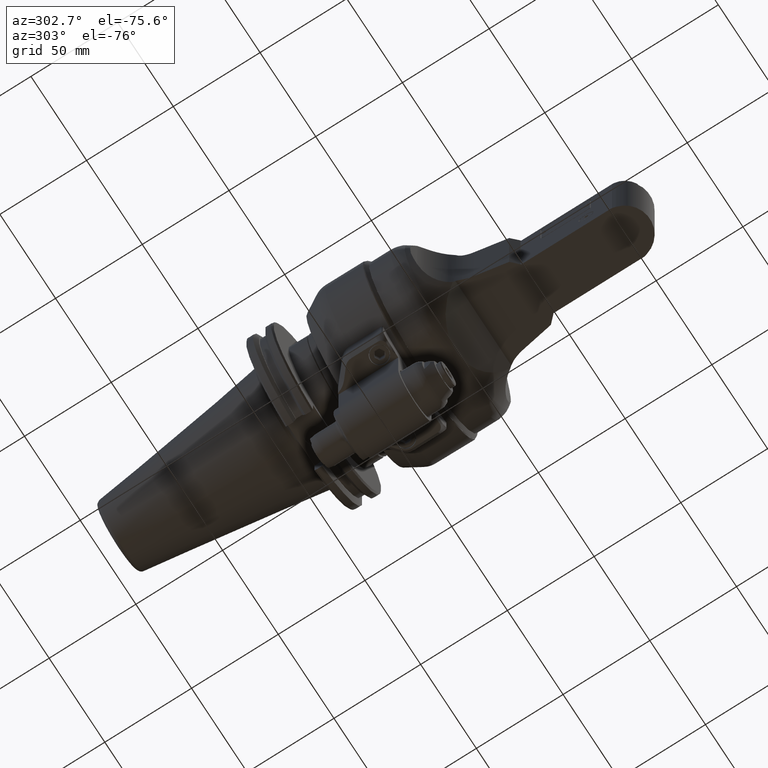
[diagram: clean part render]
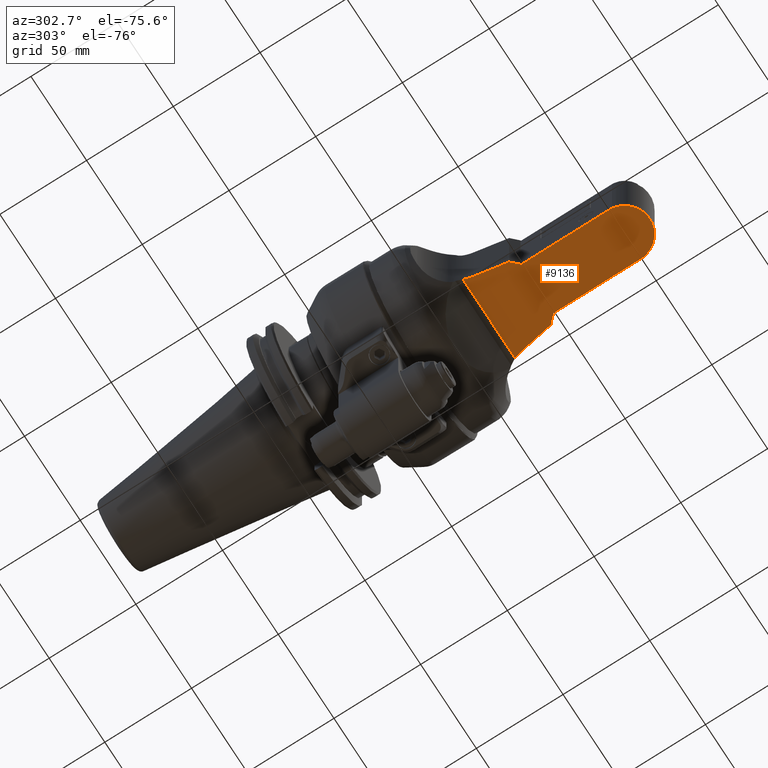
[diagram: same view with one face highlighted and labeled with its STEP entity id]
A machine part, auxiliary view. The second image highlights one B-rep face of the part: STEP entity #9136.
In plain terms, the highlighted planar face has unit normal (-0, 0, -1).
Its self-contained STEP definition (entity closure, byte-faithful):
#621=CIRCLE('',#9774,1.02362204724409);
#622=CIRCLE('',#9775,0.570866141732284);
#623=CIRCLE('',#9776,1.02362204724409);
#1160=FACE_OUTER_BOUND('',#1731,.T.);
#1731=EDGE_LOOP('',(#6102,#6103,#6104,#6105,#6106,#6107,#6108,#6109,#6110,
#6111,#6112,#6113,#6114,#6115));
#2400=LINE('',#13895,#3081);
#2407=LINE('',#13915,#3088);
#2408=LINE('',#13919,#3089);
#2409=LINE('',#13921,#3090);
#2410=LINE('',#13922,#3091);
#2411=LINE('',#13924,#3092);
#2412=LINE('',#13928,#3093);
#2413=LINE('',#13930,#3094);
#2414=LINE('',#13932,#3095);
#2415=LINE('',#13934,#3096);
#2416=LINE('',#13936,#3097);
#3081=VECTOR('',#10930,2.06334493125079);
#3088=VECTOR('',#10945,1.85096243012126);
#3089=VECTOR('',#10948,0.732940375820069);
#3090=VECTOR('',#10949,0.229829280802859);
#3091=VECTOR('',#10950,0.00454435479864941);
#3092=VECTOR('',#10951,0.0751559533471279);
#3093=VECTOR('',#10954,0.0751559533471279);
#3094=VECTOR('',#10955,2.06334493125079);
#3095=VECTOR('',#10956,0.00454435479865334);
#3096=VECTOR('',#10957,0.229829280802859);
#3097=VECTOR('',#10958,0.732940375820069);
#3765=VERTEX_POINT('',#13893);
#3766=VERTEX_POINT('',#13894);
#3774=VERTEX_POINT('',#13913);
#3775=VERTEX_POINT('',#13914);
#3776=VERTEX_POINT('',#13916);
#3777=VERTEX_POINT('',#13918);
#3778=VERTEX_POINT('',#13920);
#3779=VERTEX_POINT('',#13923);
#3780=VERTEX_POINT('',#13925);
#3781=VERTEX_POINT('',#13927);
#3782=VERTEX_POINT('',#13929);
#3783=VERTEX_POINT('',#13931);
#3784=VERTEX_POINT('',#13933);
#3785=VERTEX_POINT('',#13935);
#4688=EDGE_CURVE('',#3765,#3766,#2400,.T.);
#4698=EDGE_CURVE('',#3774,#3775,#2407,.T.);
#4699=EDGE_CURVE('',#3774,#3776,#621,.T.);
#4700=EDGE_CURVE('',#3776,#3777,#2408,.T.);
#4701=EDGE_CURVE('',#3777,#3778,#2409,.T.);
#4702=EDGE_CURVE('',#3778,#3765,#2410,.T.);
#4703=EDGE_CURVE('',#3766,#3779,#2411,.T.);
#4704=EDGE_CURVE('',#3779,#3780,#622,.T.);
#4705=EDGE_CURVE('',#3780,#3781,#2412,.T.);
#4706=EDGE_CURVE('',#3781,#3782,#2413,.T.);
#4707=EDGE_CURVE('',#3782,#3783,#2414,.T.);
#4708=EDGE_CURVE('',#3783,#3784,#2415,.T.);
#4709=EDGE_CURVE('',#3784,#3785,#2416,.T.);
#4710=EDGE_CURVE('',#3785,#3775,#623,.T.);
#6102=ORIENTED_EDGE('',*,*,#4698,.F.);
#6103=ORIENTED_EDGE('',*,*,#4699,.T.);
#6104=ORIENTED_EDGE('',*,*,#4700,.T.);
#6105=ORIENTED_EDGE('',*,*,#4701,.T.);
#6106=ORIENTED_EDGE('',*,*,#4702,.T.);
#6107=ORIENTED_EDGE('',*,*,#4688,.T.);
#6108=ORIENTED_EDGE('',*,*,#4703,.T.);
#6109=ORIENTED_EDGE('',*,*,#4704,.T.);
#6110=ORIENTED_EDGE('',*,*,#4705,.T.);
#6111=ORIENTED_EDGE('',*,*,#4706,.T.);
#6112=ORIENTED_EDGE('',*,*,#4707,.T.);
#6113=ORIENTED_EDGE('',*,*,#4708,.T.);
#6114=ORIENTED_EDGE('',*,*,#4709,.T.);
#6115=ORIENTED_EDGE('',*,*,#4710,.T.);
#8875=PLANE('',#9773);
#9136=ADVANCED_FACE('',(#1160),#8875,.T.);
#9773=AXIS2_PLACEMENT_3D('',#13912,#10943,#10944);
#9774=AXIS2_PLACEMENT_3D('',#13917,#10946,#10947);
#9775=AXIS2_PLACEMENT_3D('',#13926,#10952,#10953);
#9776=AXIS2_PLACEMENT_3D('',#13937,#10959,#10960);
#10930=DIRECTION('',(1.,0.,0.));
#10943=DIRECTION('center_axis',(0.,1.,0.));
#10944=DIRECTION('ref_axis',(1.,0.,0.));
#10945=DIRECTION('',(1.50528322498E-13,0.,-1.));
#10946=DIRECTION('center_axis',(0.,-1.,0.));
#10947=DIRECTION('ref_axis',(-0.377730003632286,0.,-0.925915786859665));
#10948=DIRECTION('',(0.984807753012213,0.,-0.173648177666902));
#10949=DIRECTION('',(0.707106781186548,0.,-0.707106781186548));
#10950=DIRECTION('',(-3.35708333072515E-7,-6.15579651999027E-14,-0.999999999999944));
#10951=DIRECTION('',(0.965925826289076,0.,-0.258819045102493));
#10952=DIRECTION('center_axis',(0.,1.,0.));
#10953=DIRECTION('ref_axis',(0.258819045102493,0.,0.965925826289076));
#10954=DIRECTION('',(-0.965925826289076,0.,-0.258819045102493));
#10955=DIRECTION('',(-1.,0.,0.));
#10956=DIRECTION('',(3.35708333072315E-7,0.,-0.999999999999944));
#10957=DIRECTION('',(-0.707106781186548,0.,-0.707106781186548));
#10958=DIRECTION('',(-0.984807753012213,0.,-0.173648177666902));
#10959=DIRECTION('center_axis',(0.,-1.,0.));
#10960=DIRECTION('ref_axis',(-0.173648177667193,0.,0.984807753012162));
#13893=CARTESIAN_POINT('',(3.24803149455551,0.905511811023622,0.570866141732283));
#13894=CARTESIAN_POINT('',(5.3113764257874,0.905511811023622,0.570866141732283));
#13895=CARTESIAN_POINT('',(3.2480314945374,0.905511811023622,0.570866141732283));
#13912=CARTESIAN_POINT('Origin',(5.03937007874016,0.905511811023622,0.541338582677165));
#13913=CARTESIAN_POINT('',(2.15480963198858,0.905511811023622,0.92548121506063));
#13914=CARTESIAN_POINT('',(2.15480963198898,0.905511811023622,-0.92548121506063));
#13915=CARTESIAN_POINT('',(2.15480963198858,0.905511811023622,0.92548121506063));
#13916=CARTESIAN_POINT('',(2.36371228848858,0.905511811023622,0.865198100101575));
#13917=CARTESIAN_POINT('Origin',(2.5414623916126,0.905511811023622,1.87326902838189));
#13918=CARTESIAN_POINT('',(3.08551765309213,0.905511811023622,0.737924339501969));
#13919=CARTESIAN_POINT('',(2.36371228848858,0.905511811023622,0.865198100101575));
#13920=CARTESIAN_POINT('',(3.24803149606299,0.905511811023622,0.575410496531102));
#13921=CARTESIAN_POINT('',(3.08551765309213,0.905511811023622,0.737924339501969));
#13922=CARTESIAN_POINT('',(3.24803149606299,0.905511811023622,0.575410496531102));
#13923=CARTESIAN_POINT('',(5.38397150212598,0.905511811023622,0.55141434965315));
#13924=CARTESIAN_POINT('',(5.3113764257874,0.905511811023622,0.570866141732283));
#13925=CARTESIAN_POINT('',(5.38397150212598,0.905511811023622,-0.55141434965315));
#13926=CARTESIAN_POINT('Origin',(5.23622047244094,0.905511811023622,0.));
#13927=CARTESIAN_POINT('',(5.3113764257874,0.905511811023622,-0.570866141732283));
#13928=CARTESIAN_POINT('',(5.38397150212598,0.905511811023622,-0.55141434965315));
#13929=CARTESIAN_POINT('',(3.2480314945555,0.905511811023622,-0.570866141732283));
#13930=CARTESIAN_POINT('',(5.3113764257874,0.905511811023622,-0.570866141732283));
#13931=CARTESIAN_POINT('',(3.24803149606299,0.905511811023622,-0.575410496531102));
#13932=CARTESIAN_POINT('',(3.2480314945374,0.905511811023622,-0.570866141732283));
#13933=CARTESIAN_POINT('',(3.08551765309213,0.905511811023622,-0.737924339501969));
#13934=CARTESIAN_POINT('',(3.24803149606299,0.905511811023622,-0.575410496531102));
#13935=CARTESIAN_POINT('',(2.36371228848858,0.905511811023622,-0.865198100101575));
#13936=CARTESIAN_POINT('',(3.08551765309213,0.905511811023622,-0.737924339501969));
#13937=CARTESIAN_POINT('Origin',(2.5414623916126,0.905511811023622,-1.87326902838189));